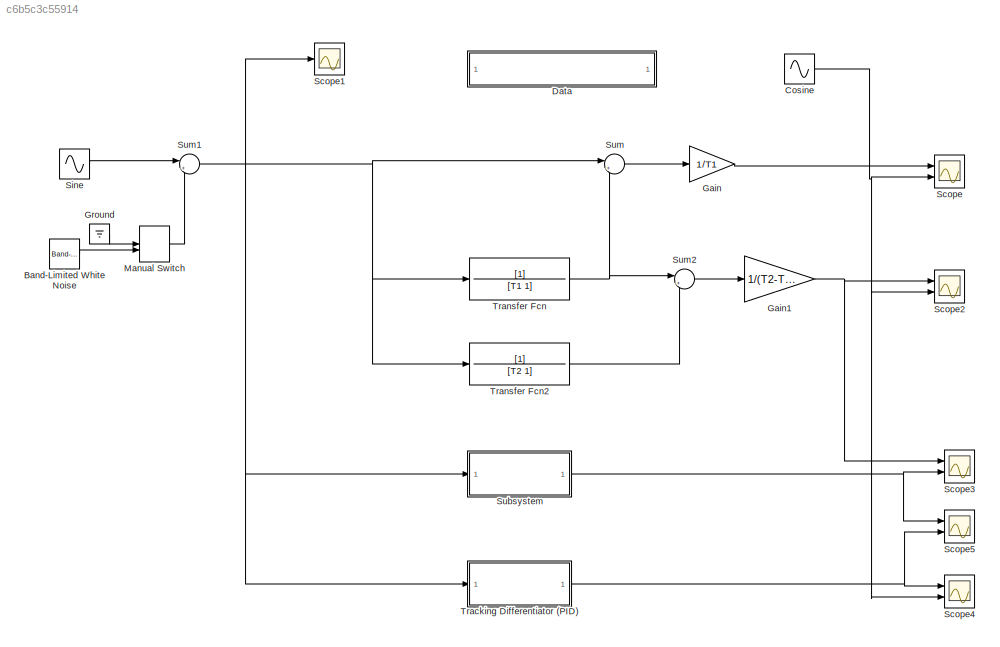
MODEL slx_c6b5c3c55914
KIND model
CONFIG AbsTol = auto
CONFIG EnableMultiTasking = off
CONFIG FixedStep = Ts
CONFIG MaxStep = auto
CONFIG MinStep = auto
CONFIG RelTol = 1e-3
CONFIG SampleTimeConstraint = Unconstrained
CONFIG SolverName = FixedStepAuto
CONFIG StartTime = 0.0
CONFIG StopTime = 20
BLOCK [Reference] Band-Limited White Noise  REF=simulink/Sources/Band-Limited
White Noise
  Ports = [0, 1]
  SourceBlock = simulink/Sources/Band-Limited\nWhite Noise
  SourceProductBaseCode = SL
  SourceType = Band-Limited White Noise.
BLOCK [Sin] Cosine
  Phase = pi/2
  Ports = [0, 1]
  SampleTime = 0
BLOCK [SubSystem] Data
  OpenFcn = Ts = 1e-3;\nT1 = 10*Ts;\nT2 = 20*Ts;\n\nsim('AnalogDiff')
  Ports = []
  RequestExecContextInheritance = off
BLOCK [Gain] Gain
  Gain = 1/T1
BLOCK [Gain] Gain1
  Gain = 1/(T2-T1)
BLOCK [Ground] Ground
BLOCK [ManualSwitch] Manual Switch
BLOCK [Scope] Scope
  Floating = off
  NumInputPorts = 2
  Ports = [2]
  ScopeSpecificationString = Simulink.scopes.TimeScopeBlockCfg('CurrentConfiguration', extmgr.ConfigurationSet(extmgr.Configuration('Core','General UI',true),extmgr.Configuration('Core','Source UI',true),extmgr.Configuration('Sources','WiredSimulink',true),extmgr.Configuration('Visuals','Time Domain',true,'SerializedDisplays',{struct('MinYLimReal','-1.25','MaxYLimReal','1.25','YLabelReal','','MinYLimMag','0.00000','MaxYLimMag...<+1397ch>
BLOCK [Scope] Scope1
  Floating = off
  NumInputPorts = 1
  Ports = [1]
  ScopeSpecificationString = Simulink.scopes.TimeScopeBlockCfg('CurrentConfiguration', extmgr.ConfigurationSet(extmgr.Configuration('Core','General UI',true),extmgr.Configuration('Core','Source UI',true),extmgr.Configuration('Sources','WiredSimulink',true,'DataLoggingVariableName','ScopeData1'),extmgr.Configuration('Visuals','Time Domain',true,'SerializedDisplays',{struct('MinYLimReal','-1.66932','MaxYLimReal','1.67584','YLab...<+1401ch>
BLOCK [Scope] Scope2
  Floating = off
  NumInputPorts = 2
  Ports = [2]
  ScopeSpecificationString = Simulink.scopes.TimeScopeBlockCfg('CurrentConfiguration', extmgr.ConfigurationSet(extmgr.Configuration('Core','General UI',true),extmgr.Configuration('Core','Source UI',true),extmgr.Configuration('Sources','WiredSimulink',true,'DataLoggingVariableName','ScopeData2'),extmgr.Configuration('Visuals','Time Domain',true,'SerializedDisplays',{struct('MinYLimReal','-4.85857','MaxYLimReal','5.69525','YLab...<+1411ch>
BLOCK [Scope] Scope3
  Floating = off
  NumInputPorts = 2
  Ports = [2]
  ScopeSpecificationString = Simulink.scopes.TimeScopeBlockCfg('CurrentConfiguration', extmgr.ConfigurationSet(extmgr.Configuration('Core','General UI',true),extmgr.Configuration('Core','Source UI',true),extmgr.Configuration('Sources','WiredSimulink',true,'DataLoggingVariableName','ScopeData3'),extmgr.Configuration('Visuals','Time Domain',true,'SerializedDisplays',{struct('MinYLimReal','-4.85857','MaxYLimReal','5.69525','YLab...<+1414ch>
BLOCK [Scope] Scope4
  Floating = off
  NumInputPorts = 2
  Ports = [2]
  ScopeSpecificationString = Simulink.scopes.TimeScopeBlockCfg('CurrentConfiguration', extmgr.ConfigurationSet(extmgr.Configuration('Core','General UI',true),extmgr.Configuration('Core','Source UI',true),extmgr.Configuration('Sources','WiredSimulink',true,'DataLoggingVariableName','ScopeData4'),extmgr.Configuration('Visuals','Time Domain',true,'SerializedDisplays',{struct('MinYLimReal','-1.89488','MaxYLimReal','1.78121','YLab...<+1435ch>
BLOCK [Scope] Scope5
  Floating = off
  NumInputPorts = 2
  Ports = [2]
  ScopeSpecificationString = Simulink.scopes.TimeScopeBlockCfg('CurrentConfiguration', extmgr.ConfigurationSet(extmgr.Configuration('Core','General UI',true),extmgr.Configuration('Core','Source UI',true),extmgr.Configuration('Sources','WiredSimulink',true,'DataLoggingVariableName','ScopeData5'),extmgr.Configuration('Visuals','Time Domain',true,'SerializedDisplays',{struct('MinYLimReal','-7.99546','MaxYLimReal','9.61389','YLab...<+1525ch>
BLOCK [Sin] Sine
  Ports = [0, 1]
  SampleTime = 0
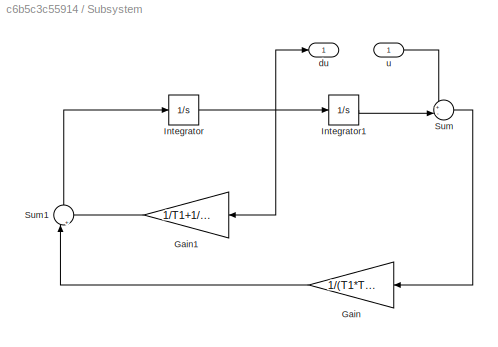
BLOCK [SubSystem] Subsystem
  Ports = [1, 1]
  RequestExecContextInheritance = off
BLOCK [Gain] Subsystem/Gain
  Gain = 1/(T1*T2)
BLOCK [Gain] Subsystem/Gain1
  Gain = 1/T1+1/T2
BLOCK [Integrator] Subsystem/Integrator
  Ports = [1, 1]
BLOCK [Integrator] Subsystem/Integrator1
  Ports = [1, 1]
BLOCK [Sum] Subsystem/Sum
  Inputs = +-|
  Ports = [2, 1]
BLOCK [Sum] Subsystem/Sum1
  Inputs = |+-
  NameLocation = right
  Ports = [2, 1]
BLOCK [Outport] Subsystem/du
BLOCK [Inport] Subsystem/u
BLOCK [Sum] Sum
  Inputs = |+-
  Ports = [2, 1]
BLOCK [Sum] Sum1
  Inputs = |++
  Ports = [2, 1]
BLOCK [Sum] Sum2
  Inputs = |+-
  Ports = [2, 1]
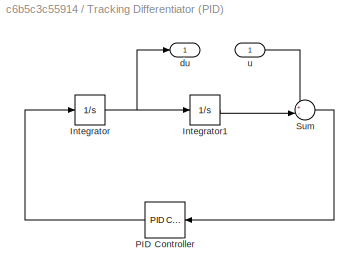
BLOCK [SubSystem] Tracking Differentiator (PID)
  Ports = [1, 1]
  RequestExecContextInheritance = off
BLOCK [Integrator] Tracking Differentiator (PID)/Integrator
  Ports = [1, 1]
BLOCK [Integrator] Tracking Differentiator (PID)/Integrator1
  Ports = [1, 1]
BLOCK [Reference] Tracking Differentiator (PID)/PID Controller  REF=pid_lib/PID Controller
  Ports = [1, 1]
  SourceBlock = pid_lib/PID Controller
  SourceProductBaseCode = SL
  SourceType = PID 1dof
BLOCK [Sum] Tracking Differentiator (PID)/Sum
  Inputs = +-|
  Ports = [2, 1]
BLOCK [Outport] Tracking Differentiator (PID)/du
BLOCK [Inport] Tracking Differentiator (PID)/u
BLOCK [TransferFcn] Transfer Fcn
  Denominator = [T1 1]
BLOCK [TransferFcn] Transfer Fcn2
  Denominator = [T2 1]
LINE Band-Limited White Noise:1 -> Manual Switch:2
NET Cosine:1 -> Scope2:2, Scope4:2, Scope:2
NET Gain1:1 -> Scope2:1, Scope3:1
LINE Gain:1 -> Scope:1
LINE Ground:1 -> Manual Switch:1
LINE Manual Switch:1 -> Sum1:2
LINE Sine:1 -> Sum1:1
LINE Subsystem/Gain1:1 -> Subsystem/Sum1:2
LINE Subsystem/Gain:1 -> Subsystem/Sum1:1
LINE Subsystem/Integrator1:1 -> Subsystem/Sum:2
NET Subsystem/Integrator:1 -> Subsystem/Gain1:1, Subsystem/Integrator1:1, Subsystem/du:1
LINE Subsystem/Sum1:1 -> Subsystem/Integrator:1
LINE Subsystem/Sum:1 -> Subsystem/Gain:1
LINE Subsystem/u:1 -> Subsystem/Sum:1
NET Subsystem:1 -> Scope3:2, Scope5:1
NET Sum1:1 -> Scope1:1, Subsystem:1, Sum:1, Tracking Differentiator (PID):1, Transfer Fcn2:1, Transfer Fcn:1
LINE Sum2:1 -> Gain1:1
LINE Sum:1 -> Gain:1
LINE Tracking Differentiator (PID)/Integrator1:1 -> Tracking Differentiator (PID)/Sum:2
NET Tracking Differentiator (PID)/Integrator:1 -> Tracking Differentiator (PID)/Integrator1:1, Tracking Differentiator (PID)/du:1
LINE Tracking Differentiator (PID)/PID Controller:1 -> Tracking Differentiator (PID)/Integrator:1
LINE Tracking Differentiator (PID)/Sum:1 -> Tracking Differentiator (PID)/PID Controller:1
LINE Tracking Differentiator (PID)/u:1 -> Tracking Differentiator (PID)/Sum:1
NET Tracking Differentiator (PID):1 -> Scope4:1, Scope5:2
LINE Transfer Fcn2:1 -> Sum2:2
NET Transfer Fcn:1 -> Sum2:1, Sum:2
note: NET lines group one-source signal fan-out (src -> all destinations, sorted); 1:1 wires keep LINE
